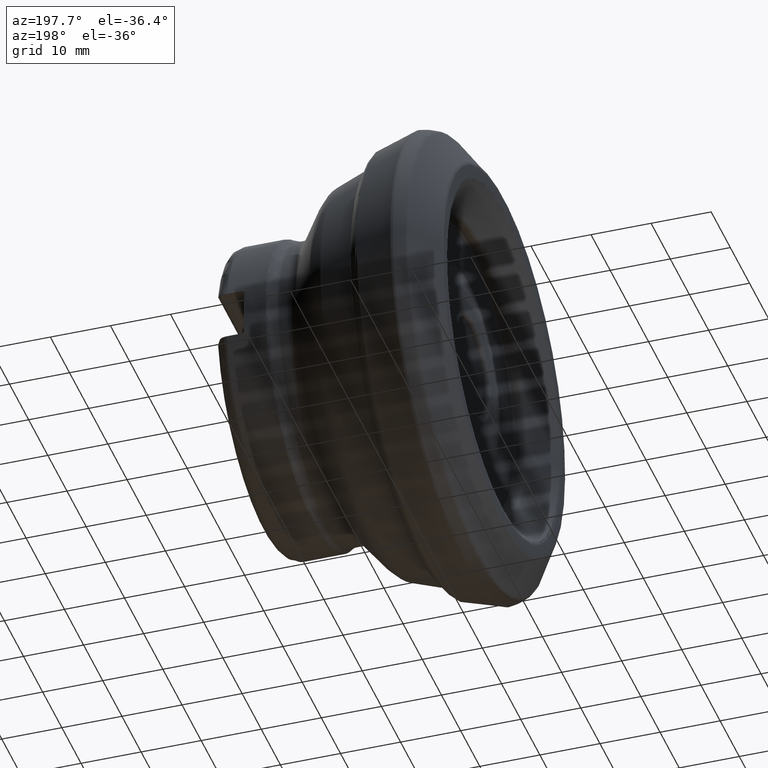
[diagram: clean part render]
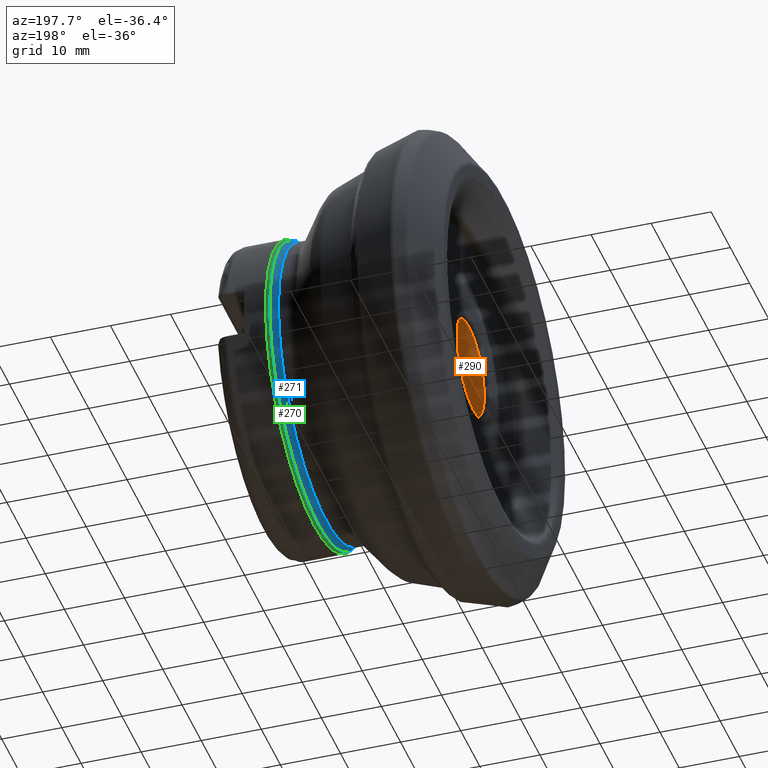
[diagram: same view with three faces highlighted in distinct colors, each labeled with its STEP entity id]
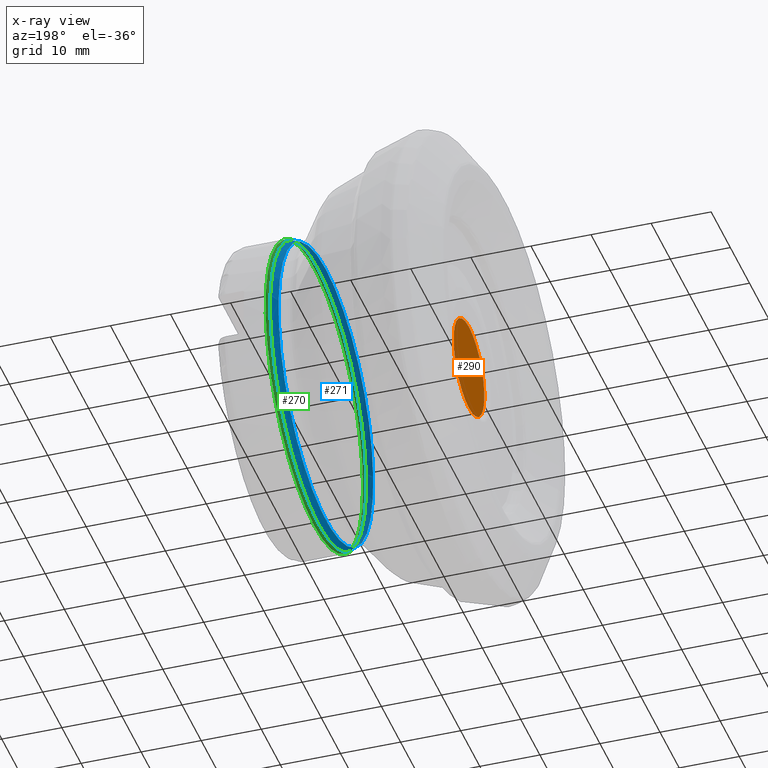
[diagram: x-ray of the same camera — body ghosted, the three highlighted faces saturated]
A machine part, auxiliary view with three faces highlighted in distinct colors.
The next image is the same camera in x-ray (body ghosted, the three faces saturated) — at least one of them is partly hidden behind the body in this view.
Their STEP definitions:

[orange] entity #290 — the highlighted planar face has unit normal (1, 0, 0).
#149=PLANE('',#1176);
#173=FACE_OUTER_BOUND('',#588,.T.);
#290=ADVANCED_FACE('',(#173),#149,.F.);
#588=EDGE_LOOP('',(#810));
#810=ORIENTED_EDGE('',*,*,#1009,.T.);
#898=VERTEX_POINT('',#2037);
#1009=EDGE_CURVE('',#898,#898,#1068,.T.);
#1068=CIRCLE('',#1171,8.01099565665383);
#1171=AXIS2_PLACEMENT_3D('',#2036,#1425,#1426);
#1176=AXIS2_PLACEMENT_3D('',#2043,#1435,#1436);
#1425=DIRECTION('',(-1.,0.,0.));
#1426=DIRECTION('',(0.,0.,1.));
#1435=DIRECTION('',(1.,0.,0.));
#1436=DIRECTION('',(0.,0.,-1.));
#2036=CARTESIAN_POINT('',(5.85211352718248,-5.00155472593633E-14,0.));
#2037=CARTESIAN_POINT('',(5.85211352718248,-5.00155472593633E-14,8.01099565665383));
#2043=CARTESIAN_POINT('',(5.85211352718248,0.,0.));

[blue] entity #271 — the highlighted toroidal blend (fillet) surface has major radius 26.7 mm and minor (blend) radius 2 mm.
#115=TOROIDAL_SURFACE('',#1142,26.7,2.);
#271=ADVANCED_FACE('',(#447,#448),#115,.F.);
#447=FACE_BOUND('',#555,.T.);
#448=FACE_BOUND('',#556,.T.);
#555=EDGE_LOOP('',(#750));
#556=EDGE_LOOP('',(#751));
#750=ORIENTED_EDGE('',*,*,#994,.T.);
#751=ORIENTED_EDGE('',*,*,#995,.F.);
#887=VERTEX_POINT('',#1994);
#888=VERTEX_POINT('',#1997);
#994=EDGE_CURVE('',#887,#887,#1053,.T.);
#995=EDGE_CURVE('',#888,#888,#1054,.T.);
#1053=CIRCLE('',#1139,25.1666666666666);
#1054=CIRCLE('',#1141,24.7);
#1139=AXIS2_PLACEMENT_3D('',#1993,#1361,#1362);
#1141=AXIS2_PLACEMENT_3D('',#1996,#1365,#1366);
#1142=AXIS2_PLACEMENT_3D('',#1998,#1367,#1368);
#1361=DIRECTION('',(-1.,0.,0.));
#1362=DIRECTION('',(0.,0.,1.));
#1365=DIRECTION('',(-1.,0.,0.));
#1366=DIRECTION('',(0.,0.,1.));
#1367=DIRECTION('',(-1.,0.,0.));
#1368=DIRECTION('',(0.,0.,1.));
#1993=CARTESIAN_POINT('',(30.9556635608711,0.,0.));
#1994=CARTESIAN_POINT('',(30.9556635608711,0.,25.1666666666666));
#1996=CARTESIAN_POINT('',(29.6715728752538,0.,0.));
#1997=CARTESIAN_POINT('',(29.6715728752538,0.,24.7));
#1998=CARTESIAN_POINT('',(29.6715728752538,0.,0.));

[green] entity #270 — the highlighted toroidal blend (fillet) surface has major radius 24.4 mm and minor (blend) radius 1 mm.
#114=TOROIDAL_SURFACE('',#1140,24.4,1.);
#270=ADVANCED_FACE('',(#445,#446),#114,.T.);
#445=FACE_BOUND('',#553,.T.);
#446=FACE_BOUND('',#554,.T.);
#553=EDGE_LOOP('',(#748));
#554=EDGE_LOOP('',(#749));
#748=ORIENTED_EDGE('',*,*,#993,.F.);
#749=ORIENTED_EDGE('',*,*,#994,.F.);
#886=VERTEX_POINT('',#1992);
#887=VERTEX_POINT('',#1994);
#993=EDGE_CURVE('',#886,#886,#1052,.T.);
#994=EDGE_CURVE('',#887,#887,#1053,.T.);
#1052=CIRCLE('',#1138,25.4);
#1053=CIRCLE('',#1139,25.1666666666666);
#1138=AXIS2_PLACEMENT_3D('',#1991,#1359,#1360);
#1139=AXIS2_PLACEMENT_3D('',#1993,#1361,#1362);
#1140=AXIS2_PLACEMENT_3D('',#1995,#1363,#1364);
#1359=DIRECTION('',(1.,0.,0.));
#1360=DIRECTION('',(0.,0.,-1.));
#1361=DIRECTION('',(-1.,0.,0.));
#1362=DIRECTION('',(0.,0.,1.));
#1363=DIRECTION('',(1.,0.,0.));
#1364=DIRECTION('',(0.,0.,-1.));
#1991=CARTESIAN_POINT('',(31.5977089036796,0.,0.));
#1992=CARTESIAN_POINT('',(31.5977089036796,0.,-25.4));
#1993=CARTESIAN_POINT('',(30.9556635608711,0.,0.));
#1994=CARTESIAN_POINT('',(30.9556635608711,0.,25.1666666666666));
#1995=CARTESIAN_POINT('',(31.5977089036796,0.,0.));